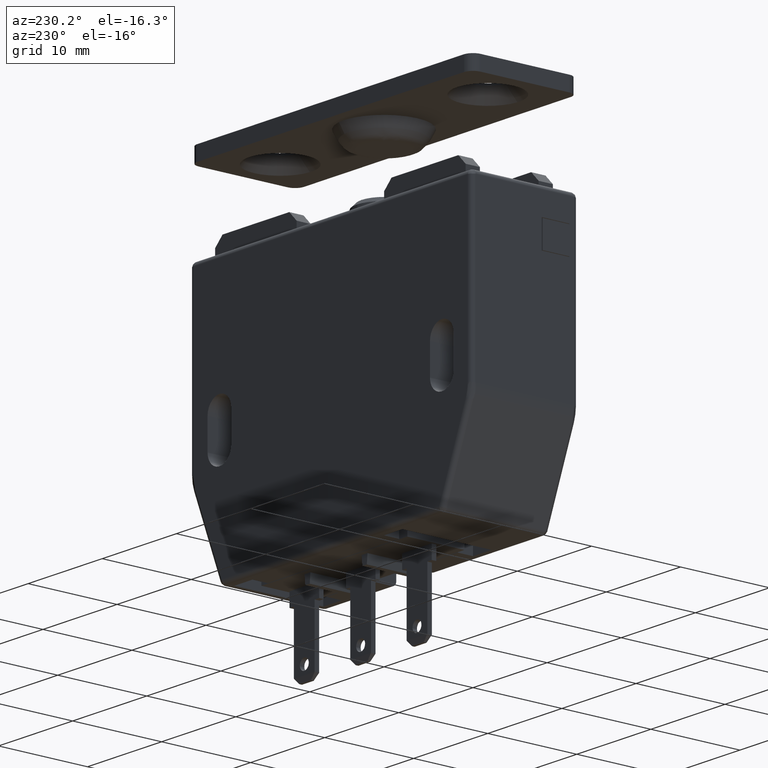
[diagram: clean part render]
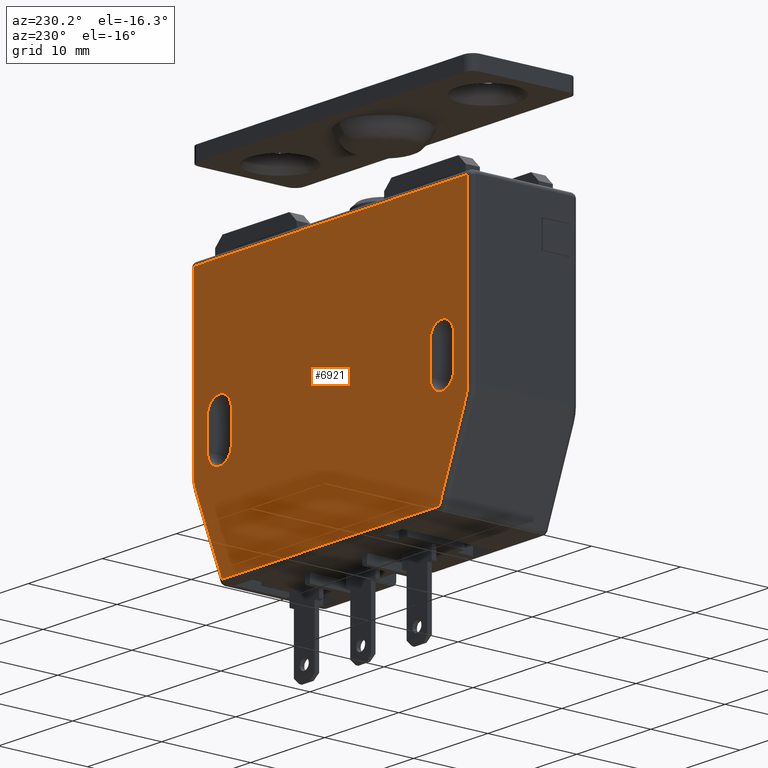
[diagram: same view with one face highlighted and labeled with its STEP entity id]
A machine part, auxiliary view. The second image highlights one B-rep face of the part: STEP entity #6921.
In plain terms, the highlighted face is a freeform B-spline surface patch.
Its self-contained STEP definition (entity closure, byte-faithful):
#6721=CARTESIAN_POINT('',(-20.348149928286439,6.0,-1.051450056210441));
#6722=CARTESIAN_POINT('',(20.348150920703770,6.0,-1.051450056210441));
#6723=CARTESIAN_POINT('',(-20.348149928286439,6.0,-32.948550721635797));
#6724=CARTESIAN_POINT('',(20.348150920703770,6.0,-32.948550721635797));
#6725=B_SPLINE_SURFACE_WITH_KNOTS('',1,1,((#6721,#6723),(#6722,#6724)),.UNSPECIFIED.,.F.,.F.,.U.,(2,2),(2,2),(0.0,40.696300848990212),(0.0,31.897100665425359),.UNSPECIFIED.);
#6726=CARTESIAN_POINT('',(-18.249668418098150,6.0,-22.529537752973152));
#6727=VERTEX_POINT('',#6726);
#6728=CARTESIAN_POINT('',(-18.499999999999648,6.0,-21.229670385733950));
#6729=VERTEX_POINT('',#6728);
#6730=CARTESIAN_POINT('',(-18.249668418098139,6.0,-22.529537752973152));
#6731=CARTESIAN_POINT('',(-18.499999999999662,5.999999999999999,-21.903708798219245));
#6732=CARTESIAN_POINT('',(-18.499999999999659,6.0,-21.229670385733950));
#6740=(BOUNDED_CURVE()B_SPLINE_CURVE(2,(#6730,#6731,#6732),.UNSPECIFIED.,.F.,.U.)CURVE()GEOMETRIC_REPRESENTATION_ITEM()QUASI_UNIFORM_CURVE()RATIONAL_B_SPLINE_CURVE((1.0,0.981956386731427,1.0))REPRESENTATION_ITEM(''));
#6741=EDGE_CURVE('',#6727,#6729,#6740,.T.);
#6742=ORIENTED_EDGE('',*,*,#6741,.T.);
#6743=CARTESIAN_POINT('',(-18.499999999999648,6.0,-2.500000000002815));
#6744=VERTEX_POINT('',#6743);
#6745=CARTESIAN_POINT('',(-18.499999999999648,6.0,-21.229670385733950));
#6746=CARTESIAN_POINT('',(-18.499999999999648,6.0,-2.500000000002815));
#6747=QUASI_UNIFORM_CURVE('',1,(#6745,#6746),.UNSPECIFIED.,.F.,.U.);
#6748=EDGE_CURVE('',#6729,#6744,#6747,.T.);
#6749=ORIENTED_EDGE('',*,*,#6748,.T.);
#6750=CARTESIAN_POINT('',(18.499999999999648,6.0,-2.500000000002815));
#6751=VERTEX_POINT('',#6750);
#6752=CARTESIAN_POINT('',(-18.499999999999648,6.0,-2.500000000002815));
#6753=CARTESIAN_POINT('',(18.499999999999648,6.0,-2.500000000002815));
#6754=QUASI_UNIFORM_CURVE('',1,(#6752,#6753),.UNSPECIFIED.,.F.,.U.);
#6755=EDGE_CURVE('',#6744,#6751,#6754,.T.);
#6756=ORIENTED_EDGE('',*,*,#6755,.T.);
#6757=CARTESIAN_POINT('',(18.499999999999648,6.0,-21.229670385733751));
#6758=VERTEX_POINT('',#6757);
#6759=CARTESIAN_POINT('',(18.499999999999648,6.0,-2.500000000002815));
#6760=CARTESIAN_POINT('',(18.499999999999648,6.0,-21.229670385733751));
#6761=QUASI_UNIFORM_CURVE('',1,(#6759,#6760),.UNSPECIFIED.,.F.,.U.);
#6762=EDGE_CURVE('',#6751,#6758,#6761,.T.);
#6763=ORIENTED_EDGE('',*,*,#6762,.T.);
#6764=CARTESIAN_POINT('',(18.249668418098100,6.0,-22.529537752972999));
#6765=VERTEX_POINT('',#6764);
#6766=CARTESIAN_POINT('',(18.499999999999659,6.0,-21.229670385733751));
#6767=CARTESIAN_POINT('',(18.499999999999662,6.0,-21.903708798219071));
#6768=CARTESIAN_POINT('',(18.249668418098111,6.0,-22.529537752973010));
#6776=(BOUNDED_CURVE()B_SPLINE_CURVE(2,(#6766,#6767,#6768),.UNSPECIFIED.,.F.,.U.)CURVE()GEOMETRIC_REPRESENTATION_ITEM()QUASI_UNIFORM_CURVE()RATIONAL_B_SPLINE_CURVE((1.0,0.981956386731425,1.0))REPRESENTATION_ITEM(''));
#6777=EDGE_CURVE('',#6758,#6765,#6776,.T.);
#6778=ORIENTED_EDGE('',*,*,#6777,.T.);
#6779=CARTESIAN_POINT('',(14.661483519286501,6.0,-31.500000000002800));
#6780=VERTEX_POINT('',#6779);
#6781=CARTESIAN_POINT('',(18.249668418098100,6.0,-22.529537752972999));
#6782=CARTESIAN_POINT('',(14.661483519286501,6.0,-31.500000000002800));
#6783=QUASI_UNIFORM_CURVE('',1,(#6781,#6782),.UNSPECIFIED.,.F.,.U.);
#6784=EDGE_CURVE('',#6765,#6780,#6783,.T.);
#6785=ORIENTED_EDGE('',*,*,#6784,.T.);
#6786=CARTESIAN_POINT('',(-14.661483519286600,6.0,-31.500000000002800));
#6787=VERTEX_POINT('',#6786);
#6788=CARTESIAN_POINT('',(14.661483519286501,6.0,-31.500000000002800));
#6789=CARTESIAN_POINT('',(-14.661483519286600,6.0,-31.500000000002800));
#6790=QUASI_UNIFORM_CURVE('',1,(#6788,#6789),.UNSPECIFIED.,.F.,.U.);
#6791=EDGE_CURVE('',#6780,#6787,#6790,.T.);
#6792=ORIENTED_EDGE('',*,*,#6791,.T.);
#6793=CARTESIAN_POINT('',(-14.661483519286600,6.0,-31.500000000002800));
#6794=CARTESIAN_POINT('',(-18.249668418098150,6.0,-22.529537752973152));
#6795=QUASI_UNIFORM_CURVE('',1,(#6793,#6794),.UNSPECIFIED.,.F.,.U.);
#6796=EDGE_CURVE('',#6787,#6727,#6795,.T.);
#6797=ORIENTED_EDGE('',*,*,#6796,.T.);
#6798=EDGE_LOOP('',(#6742,#6749,#6756,#6763,#6778,#6785,#6792,#6797));
#6799=FACE_OUTER_BOUND('',#6798,.T.);
#6800=CARTESIAN_POINT('',(16.599999999999451,6.0,-16.349999999975001));
#6801=VERTEX_POINT('',#6800);
#6802=CARTESIAN_POINT('',(13.399999999999640,6.0,-16.349999999975001));
#6803=VERTEX_POINT('',#6802);
#6804=CARTESIAN_POINT('',(16.599999999999451,6.0,-16.349999999975001));
#6805=CARTESIAN_POINT('',(16.600152510192739,6.000000000000012,-16.160172541162090));
#6806=CARTESIAN_POINT('',(16.544590493195429,5.999999999999989,-15.852675656803470));
#6807=CARTESIAN_POINT('',(16.360988375355699,6.000000000000012,-15.488006942699711));
#6808=CARTESIAN_POINT('',(16.173502203179790,5.999999999999996,-15.250811261230050));
#6809=CARTESIAN_POINT('',(15.919151493573340,5.999999999999984,-15.023010880963840));
#6810=CARTESIAN_POINT('',(15.588763590687790,6.000000000000030,-14.841199306048320));
#6811=CARTESIAN_POINT('',(15.158880859327070,6.000000000000030,-14.739092830911339));
#6812=CARTESIAN_POINT('',(14.749240980521710,5.999999999999923,-14.751684095710280));
#6813=CARTESIAN_POINT('',(14.408111557900121,6.000000000000064,-14.852917201539110));
#6814=CARTESIAN_POINT('',(14.116834763717760,5.999999999999971,-15.004041120822400));
#6815=CARTESIAN_POINT('',(13.879015225965359,6.000000000000009,-15.191985695803179));
#6816=CARTESIAN_POINT('',(13.677383606973420,6.000000000000004,-15.434651297275529));
#6817=CARTESIAN_POINT('',(13.531673397520290,5.999999999999958,-15.691864632929381));
#6818=CARTESIAN_POINT('',(13.426840687461681,6.000000000000200,-15.996588250161841));
#6819=CARTESIAN_POINT('',(13.399972758992810,5.999999999999640,-16.225648629818309));
#6820=CARTESIAN_POINT('',(13.399999999999640,6.0,-16.349999999975001));
#6821=B_SPLINE_CURVE_WITH_KNOTS('',3,(#6804,#6805,#6806,#6807,#6808,#6809,#6810,#6811,#6812,#6813,#6814,#6815,#6816,#6817,#6818,#6819,#6820),.UNSPECIFIED.,.F.,.U.,(4,1,1,1,1,1,1,1,1,1,1,1,1,1,4),(0.000000158229184,0.569413940934457,0.922840236261127,1.217375669800973,1.472638262799391,1.943890815726308,2.336582557164490,2.788175038788374,3.161232253271181,3.396860636089329,3.769935575270463,4.064465732207061,4.339356762917040,4.653530803345605,5.026579785247300),.UNSPECIFIED.);
#6822=EDGE_CURVE('',#6801,#6803,#6821,.T.);
#6823=ORIENTED_EDGE('',*,*,#6822,.T.);
#6824=CARTESIAN_POINT('',(13.399999999999640,6.0,-19.649999999975051));
#6825=VERTEX_POINT('',#6824);
#6826=CARTESIAN_POINT('',(13.399999999999640,6.0,-16.349999999975001));
#6827=CARTESIAN_POINT('',(13.399999999999640,6.0,-19.649999999975051));
#6828=QUASI_UNIFORM_CURVE('',1,(#6826,#6827),.UNSPECIFIED.,.F.,.U.);
#6829=EDGE_CURVE('',#6803,#6825,#6828,.T.);
#6830=ORIENTED_EDGE('',*,*,#6829,.T.);
#6831=CARTESIAN_POINT('',(16.599999999999650,6.0,-19.649999999975051));
#6832=VERTEX_POINT('',#6831);
#6833=CARTESIAN_POINT('',(13.399999999999640,6.0,-19.649999999975051));
#6834=CARTESIAN_POINT('',(13.399987701474609,6.000000000000002,-19.754711841334739));
#6835=CARTESIAN_POINT('',(13.421275110787731,6.000000000000004,-19.970685910586351));
#6836=CARTESIAN_POINT('',(13.518694605539720,5.999999999999987,-20.284968136523190));
#6837=CARTESIAN_POINT('',(13.659881158492549,6.000000000000016,-20.537772598842619));
#6838=CARTESIAN_POINT('',(13.840176417223271,5.999999999999968,-20.763038778382299));
#6839=CARTESIAN_POINT('',(14.050998534882041,6.000000000000078,-20.951784142506220));
#6840=CARTESIAN_POINT('',(14.363513153455420,5.999999999999901,-21.133944002650040));
#6841=CARTESIAN_POINT('',(14.749035288687949,6.000000000000073,-21.250943196740469));
#6842=CARTESIAN_POINT('',(15.138985890109851,5.999999999999967,-21.258079308832311));
#6843=CARTESIAN_POINT('',(15.479583289319059,6.000000000000007,-21.185930810073408));
#6844=CARTESIAN_POINT('',(15.813808038313320,6.000000000000039,-21.047574469062209));
#6845=CARTESIAN_POINT('',(16.142102146159399,5.999999999999992,-20.800992717271900));
#6846=CARTESIAN_POINT('',(16.375906635331852,6.000000000000042,-20.489611870305769));
#6847=CARTESIAN_POINT('',(16.550477360994321,5.999999999999958,-20.114591346943211));
#6848=CARTESIAN_POINT('',(16.600167463265102,6.000000000000185,-19.839829279759861));
#6849=CARTESIAN_POINT('',(16.599999999999650,6.0,-19.649999999975051));
#6850=B_SPLINE_CURVE_WITH_KNOTS('',3,(#6833,#6834,#6835,#6836,#6837,#6838,#6839,#6840,#6841,#6842,#6843,#6844,#6845,#6846,#6847,#6848,#6849),.UNSPECIFIED.,.F.,.U.,(4,1,1,1,1,1,1,1,1,1,1,1,1,1,4),(0.000000158281436,0.314134873718943,0.647942425935890,0.981750209076082,1.178105224443073,1.511908176322909,1.826068022389488,2.258059452494321,2.709615062764989,2.984529950958722,3.298680234097390,3.789570788907068,4.201910317339392,4.457180251515170,5.026579785247187),.UNSPECIFIED.);
#6851=EDGE_CURVE('',#6825,#6832,#6850,.T.);
#6852=ORIENTED_EDGE('',*,*,#6851,.T.);
#6853=CARTESIAN_POINT('',(16.599999999999650,6.0,-19.649999999975051));
#6854=CARTESIAN_POINT('',(16.599999999999451,6.0,-16.349999999975001));
#6855=QUASI_UNIFORM_CURVE('',1,(#6853,#6854),.UNSPECIFIED.,.F.,.U.);
#6856=EDGE_CURVE('',#6832,#6801,#6855,.T.);
#6857=ORIENTED_EDGE('',*,*,#6856,.T.);
#6858=EDGE_LOOP('',(#6823,#6830,#6852,#6857));
#6859=FACE_BOUND('',#6858,.T.);
#6860=CARTESIAN_POINT('',(-16.599999999999699,6.0,-19.649999999975051));
#6861=VERTEX_POINT('',#6860);
#6862=CARTESIAN_POINT('',(-13.399999999999700,6.0,-19.649999999975051));
#6863=VERTEX_POINT('',#6862);
#6864=CARTESIAN_POINT('',(-16.599999999999699,6.0,-19.649999999975051));
#6865=CARTESIAN_POINT('',(-16.600049500309510,5.999999999999996,-19.793993649595262));
#6866=CARTESIAN_POINT('',(-16.561749690998329,6.000000000000016,-20.075402584652910));
#6867=CARTESIAN_POINT('',(-16.410564393088350,5.999999999999981,-20.434216554748151));
#6868=CARTESIAN_POINT('',(-16.210194967385519,6.000000000000043,-20.711365606047440));
#6869=CARTESIAN_POINT('',(-15.999513409186950,5.999999999999948,-20.909486526782850));
#6870=CARTESIAN_POINT('',(-15.725448053624460,6.000000000000119,-21.090242546647850));
#6871=CARTESIAN_POINT('',(-15.386534496765851,5.999999999999983,-21.220974439342850));
#6872=CARTESIAN_POINT('',(-14.967065863729740,5.999999999999999,-21.267489516624291));
#6873=CARTESIAN_POINT('',(-14.614280745630021,6.000000000000009,-21.215167794033601));
#6874=CARTESIAN_POINT('',(-14.312862155968061,5.999999999999947,-21.103074213105199));
#6875=CARTESIAN_POINT('',(-14.033571212005670,6.000000000000171,-20.942658845112529));
#6876=CARTESIAN_POINT('',(-13.781954183754779,6.000000000000012,-20.708894287100691));
#6877=CARTESIAN_POINT('',(-13.564513460368691,5.999999999999843,-20.387764004236178));
#6878=CARTESIAN_POINT('',(-13.431418728930240,6.000000000000419,-20.042690687060499));
#6879=CARTESIAN_POINT('',(-13.399977379869600,5.999999999999563,-19.774348752543080));
#6880=CARTESIAN_POINT('',(-13.399999999999700,6.0,-19.649999999975051));
#6881=B_SPLINE_CURVE_WITH_KNOTS('',3,(#6864,#6865,#6866,#6867,#6868,#6869,#6870,#6871,#6872,#6873,#6874,#6875,#6876,#6877,#6878,#6879,#6880),.UNSPECIFIED.,.F.,.U.,(4,1,1,1,1,1,1,1,1,1,1,1,1,1,4),(0.000000158242820,0.431969681199547,0.844303591341165,1.158468118862015,1.452997394237892,1.708265825335810,2.140241303457503,2.532899838481030,2.964875615305558,3.200501498938131,3.495039918180273,3.927018746730684,4.221555130789058,4.653530803345539,5.026579785247415),.UNSPECIFIED.);
#6882=EDGE_CURVE('',#6861,#6863,#6881,.T.);
#6883=ORIENTED_EDGE('',*,*,#6882,.T.);
#6884=CARTESIAN_POINT('',(-13.399999999999700,6.0,-16.349999999975001));
#6885=VERTEX_POINT('',#6884);
#6886=CARTESIAN_POINT('',(-13.399999999999700,6.0,-19.649999999975051));
#6887=CARTESIAN_POINT('',(-13.399999999999700,6.0,-16.349999999975001));
#6888=QUASI_UNIFORM_CURVE('',1,(#6886,#6887),.UNSPECIFIED.,.F.,.U.);
#6889=EDGE_CURVE('',#6863,#6885,#6888,.T.);
#6890=ORIENTED_EDGE('',*,*,#6889,.T.);
#6891=CARTESIAN_POINT('',(-16.599999999999650,6.0,-16.349999999975001));
#6892=VERTEX_POINT('',#6891);
#6893=CARTESIAN_POINT('',(-13.399999999999700,6.0,-16.349999999975001));
#6894=CARTESIAN_POINT('',(-13.399891645597441,5.999999999999990,-16.166730780871870));
#6895=CARTESIAN_POINT('',(-13.448873210089809,6.000000000000028,-15.885383283879440));
#6896=CARTESIAN_POINT('',(-13.598731040766250,5.999999999999969,-15.563624952364220));
#6897=CARTESIAN_POINT('',(-13.760541789527220,6.000000000000052,-15.324602020678981));
#6898=CARTESIAN_POINT('',(-13.958287779177541,5.999999999999914,-15.121939529515570));
#6899=CARTESIAN_POINT('',(-14.212894326285340,6.000000000000075,-14.947272017384250));
#6900=CARTESIAN_POINT('',(-14.452598974939960,5.999999999999999,-14.839260359770790));
#6901=CARTESIAN_POINT('',(-14.724904740585950,5.999999999999990,-14.765697614918491));
#6902=CARTESIAN_POINT('',(-15.019769557052330,5.999999999999969,-14.738465012215711));
#6903=CARTESIAN_POINT('',(-15.326947937598909,6.000000000000009,-14.774452416662159));
#6904=CARTESIAN_POINT('',(-15.634255320368800,6.000000000000156,-14.869725012162339));
#6905=CARTESIAN_POINT('',(-15.947068643317740,5.999999999999656,-15.039356411337430));
#6906=CARTESIAN_POINT('',(-16.261638191242810,6.000000000000176,-15.331542847955641));
#6907=CARTESIAN_POINT('',(-16.462313172574479,6.000000000000041,-15.666369638452389));
#6908=CARTESIAN_POINT('',(-16.575445415694450,5.999999999999679,-16.016230127605301));
#6909=CARTESIAN_POINT('',(-16.600029309939309,6.000000000000853,-16.225648323232789));
#6910=CARTESIAN_POINT('',(-16.599999999999650,6.0,-16.349999999975001));
#6911=B_SPLINE_CURVE_WITH_KNOTS('',3,(#6893,#6894,#6895,#6896,#6897,#6898,#6899,#6900,#6901,#6902,#6903,#6904,#6905,#6906,#6907,#6908,#6909,#6910),.UNSPECIFIED.,.F.,.U.,(4,1,1,1,1,1,1,1,1,1,1,1,1,1,1,4),(0.000000158235374,0.549762580233383,0.844303591335639,1.060289574504719,1.413729291554401,1.688620560719478,1.983153727181407,2.199151851045546,2.532899838478332,2.866698818372227,3.121967344255590,3.495039918178866,3.927018746730111,4.398267144504500,4.653530803345606,5.026579785247424),.UNSPECIFIED.);
#6912=EDGE_CURVE('',#6885,#6892,#6911,.T.);
#6913=ORIENTED_EDGE('',*,*,#6912,.T.);
#6914=CARTESIAN_POINT('',(-16.599999999999650,6.0,-16.349999999975001));
#6915=CARTESIAN_POINT('',(-16.599999999999699,6.0,-19.649999999975051));
#6916=QUASI_UNIFORM_CURVE('',1,(#6914,#6915),.UNSPECIFIED.,.F.,.U.);
#6917=EDGE_CURVE('',#6892,#6861,#6916,.T.);
#6918=ORIENTED_EDGE('',*,*,#6917,.T.);
#6919=EDGE_LOOP('',(#6883,#6890,#6913,#6918));
#6920=FACE_BOUND('',#6919,.T.);
#6921=ADVANCED_FACE('',(#6799,#6859,#6920),#6725,.T.);